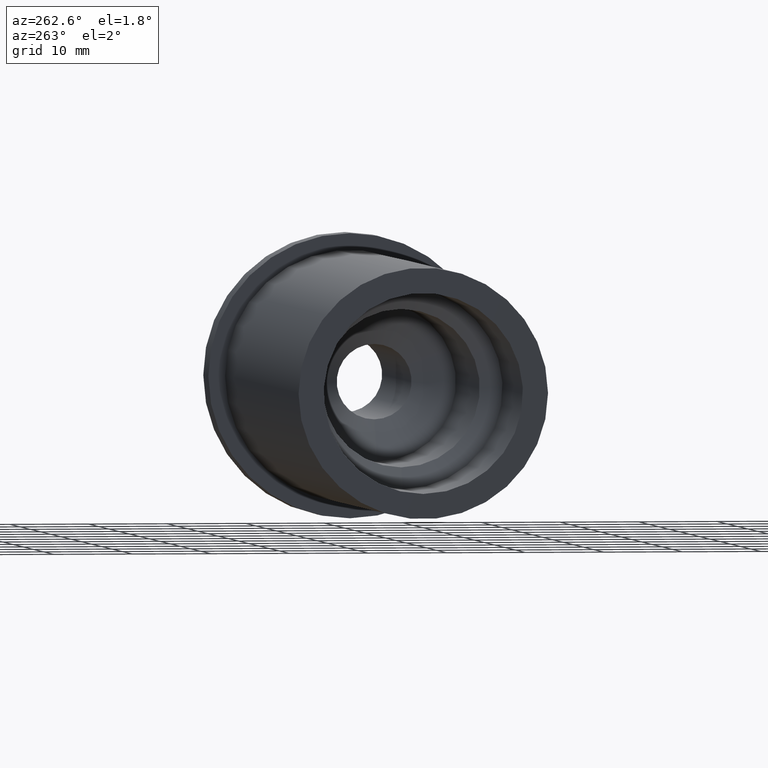
[diagram: clean part render]
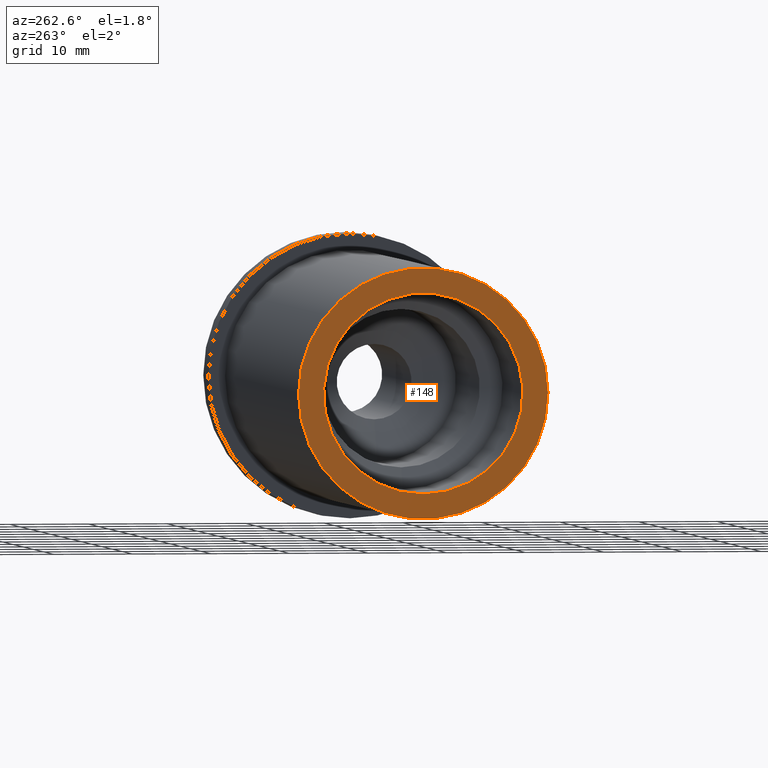
[diagram: same view with one face highlighted and labeled with its STEP entity id]
A machine part, auxiliary view. The second image highlights one B-rep face of the part: STEP entity #148.
In plain terms, the highlighted planar face has unit normal (-1, 0, 0).
Its self-contained STEP definition (entity closure, byte-faithful):
#16=FACE_BOUND('',#42,.T.);
#19=PLANE('',#190);
#30=FACE_OUTER_BOUND('',#41,.T.);
#41=EDGE_LOOP('',(#128));
#42=EDGE_LOOP('',(#129));
#66=CIRCLE('',#185,12.688101);
#69=CIRCLE('',#191,15.875);
#77=VERTEX_POINT('',#268);
#80=VERTEX_POINT('',#279);
#92=EDGE_CURVE('',#77,#77,#66,.T.);
#97=EDGE_CURVE('',#80,#80,#69,.T.);
#128=ORIENTED_EDGE('',*,*,#97,.F.);
#129=ORIENTED_EDGE('',*,*,#92,.T.);
#148=ADVANCED_FACE('',(#30,#16),#19,.T.);
#185=AXIS2_PLACEMENT_3D('',#269,#223,#224);
#190=AXIS2_PLACEMENT_3D('',#278,#235,#236);
#191=AXIS2_PLACEMENT_3D('',#280,#237,#238);
#223=DIRECTION('center_axis',(1.,0.,0.));
#224=DIRECTION('ref_axis',(0.,0.,1.));
#235=DIRECTION('center_axis',(-1.,0.,0.));
#236=DIRECTION('ref_axis',(0.,0.,1.));
#237=DIRECTION('center_axis',(1.,0.,0.));
#238=DIRECTION('ref_axis',(0.,0.,-1.));
#268=CARTESIAN_POINT('',(-77.,-1.55384422769083E-15,-12.688101));
#269=CARTESIAN_POINT('Origin',(-77.,0.,0.));
#278=CARTESIAN_POINT('Origin',(-77.,15.875,0.));
#279=CARTESIAN_POINT('',(-77.,-15.8750000000001,-1.94412679364643E-15));
#280=CARTESIAN_POINT('Origin',(-77.,0.,0.));